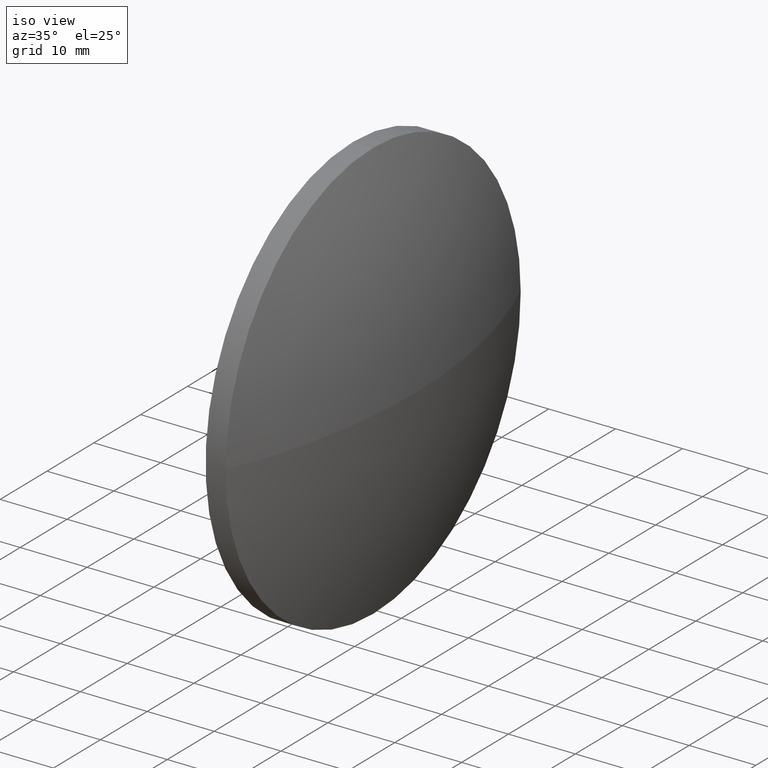
[diagram: clean part render]
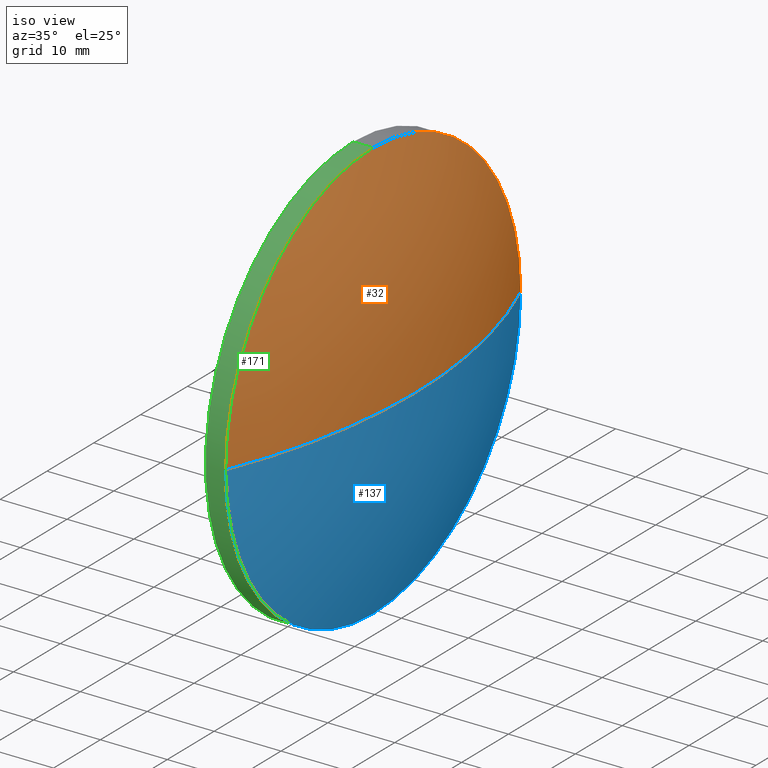
[diagram: same view with three faces highlighted in distinct colors, each labeled with its STEP entity id]
A machine part, iso view with three faces highlighted in distinct colors.
Their STEP definitions:

[orange] entity #32 — the highlighted spherical surface has radius 82.6272 mm.
#10 = DIRECTION ( 'NONE',  ( 0.0000000000000000000, 0.0000000000000000000, 1.000000000000000000 ) ) ;
#11 = ORIENTED_EDGE ( 'NONE', *, *, #49, .F. ) ;
#15 = AXIS2_PLACEMENT_3D ( 'NONE', #164, #69, #143 ) ;
#24 = DIRECTION ( 'NONE',  ( -1.000000000000000000, -0.0000000000000000000, -0.0000000000000000000 ) ) ;
#25 = AXIS2_PLACEMENT_3D ( 'NONE', #36, #24, #10 ) ;
#32 = ADVANCED_FACE ( 'NONE', ( #44 ), #130, .T. ) ;
#36 = CARTESIAN_POINT ( 'NONE',  ( 408.1110174173326200, 96.66232867724565400, 0.0000000000000000000 ) ) ;
#38 = CARTESIAN_POINT ( 'NONE',  ( 414.3510174173326800, 96.66232867724556900, 0.0000000000000000000 ) ) ;
#40 = ORIENTED_EDGE ( 'NONE', *, *, #112, .T. ) ;
#44 = FACE_OUTER_BOUND ( 'NONE', #157, .T. ) ;
#47 = VERTEX_POINT ( 'NONE', #63 ) ;
#49 = EDGE_CURVE ( 'NONE', #109, #47, #61, .T. ) ;
#52 = ORIENTED_EDGE ( 'NONE', *, *, #132, .F. ) ;
#53 = DIRECTION ( 'NONE',  ( 0.0000000000000000000, 1.224646799147353200E-016, -1.000000000000000000 ) ) ;
#54 = CARTESIAN_POINT ( 'NONE',  ( 331.7238058788712500, 96.66232867724556900, 0.0000000000000000000 ) ) ;
#55 = CARTESIAN_POINT ( 'NONE',  ( 408.1110174173326200, 96.66232867724565400, 0.0000000000000000000 ) ) ;
#61 = CIRCLE ( 'NONE', #155, 82.62721153846143800 ) ;
#63 = CARTESIAN_POINT ( 'NONE',  ( 408.1110174173326200, 65.16232867724556900, -3.857637417314161900E-015 ) ) ;
#65 = CARTESIAN_POINT ( 'NONE',  ( 331.7238058788712500, 96.66232867724556900, 0.0000000000000000000 ) ) ;
#69 = DIRECTION ( 'NONE',  ( -0.0000000000000000000, 0.0000000000000000000, 1.000000000000000000 ) ) ;
#87 = VERTEX_POINT ( 'NONE', #141 ) ;
#91 = CIRCLE ( 'NONE', #25, 31.50000000000001400 ) ;
#96 = AXIS2_PLACEMENT_3D ( 'NONE', #55, #113, #179 ) ;
#108 = DIRECTION ( 'NONE',  ( -0.0000000000000000000, 0.0000000000000000000, -1.000000000000000000 ) ) ;
#109 = VERTEX_POINT ( 'NONE', #38 ) ;
#112 = EDGE_CURVE ( 'NONE', #109, #87, #148, .T. ) ;
#113 = DIRECTION ( 'NONE',  ( -1.000000000000000000, -0.0000000000000000000, -0.0000000000000000000 ) ) ;
#114 = DIRECTION ( 'NONE',  ( 0.0000000000000000000, 1.000000000000000000, 1.224646799147353200E-016 ) ) ;
#115 = ORIENTED_EDGE ( 'NONE', *, *, #145, .F. ) ;
#124 = VERTEX_POINT ( 'NONE', #128 ) ;
#128 = CARTESIAN_POINT ( 'NONE',  ( 408.1110174173326200, 96.66232867724565400, 31.50000000000001400 ) ) ;
#130 = SPHERICAL_SURFACE ( 'NONE', #149, 82.62721153846143800 ) ;
#132 = EDGE_CURVE ( 'NONE', #47, #124, #154, .T. ) ;
#141 = CARTESIAN_POINT ( 'NONE',  ( 408.1110174173326200, 128.1623286772456500, 0.0000000000000000000 ) ) ;
#143 = DIRECTION ( 'NONE',  ( 1.000000000000000000, 0.0000000000000000000, 0.0000000000000000000 ) ) ;
#145 = EDGE_CURVE ( 'NONE', #124, #87, #91, .T. ) ;
#148 = CIRCLE ( 'NONE', #15, 82.62721153846142400 ) ;
#149 = AXIS2_PLACEMENT_3D ( 'NONE', #65, #108, #160 ) ;
#154 = CIRCLE ( 'NONE', #96, 31.50000000000001400 ) ;
#155 = AXIS2_PLACEMENT_3D ( 'NONE', #54, #53, #114 ) ;
#157 = EDGE_LOOP ( 'NONE', ( #11, #40, #115, #52 ) ) ;
#160 = DIRECTION ( 'NONE',  ( 0.0000000000000000000, 1.000000000000000000, 0.0000000000000000000 ) ) ;
#164 = CARTESIAN_POINT ( 'NONE',  ( 331.7238058788712500, 96.66232867724556900, 0.0000000000000000000 ) ) ;
#179 = DIRECTION ( 'NONE',  ( 0.0000000000000000000, 0.0000000000000000000, 1.000000000000000000 ) ) ;

[blue] entity #137 — the highlighted spherical surface has radius 82.6272 mm.
#15 = AXIS2_PLACEMENT_3D ( 'NONE', #164, #69, #143 ) ;
#21 = DIRECTION ( 'NONE',  ( 0.0000000000000000000, 0.0000000000000000000, 1.000000000000000000 ) ) ;
#31 = AXIS2_PLACEMENT_3D ( 'NONE', #140, #98, #83 ) ;
#38 = CARTESIAN_POINT ( 'NONE',  ( 414.3510174173326800, 96.66232867724556900, 0.0000000000000000000 ) ) ;
#43 = DIRECTION ( 'NONE',  ( 0.0000000000000000000, 0.0000000000000000000, 1.000000000000000000 ) ) ;
#45 = EDGE_CURVE ( 'NONE', #87, #60, #95, .T. ) ;
#47 = VERTEX_POINT ( 'NONE', #63 ) ;
#49 = EDGE_CURVE ( 'NONE', #109, #47, #61, .T. ) ;
#53 = DIRECTION ( 'NONE',  ( 0.0000000000000000000, 1.224646799147353200E-016, -1.000000000000000000 ) ) ;
#54 = CARTESIAN_POINT ( 'NONE',  ( 331.7238058788712500, 96.66232867724556900, 0.0000000000000000000 ) ) ;
#60 = VERTEX_POINT ( 'NONE', #77 ) ;
#61 = CIRCLE ( 'NONE', #155, 82.62721153846143800 ) ;
#63 = CARTESIAN_POINT ( 'NONE',  ( 408.1110174173326200, 65.16232867724556900, -3.857637417314161900E-015 ) ) ;
#69 = DIRECTION ( 'NONE',  ( -0.0000000000000000000, 0.0000000000000000000, 1.000000000000000000 ) ) ;
#76 = SPHERICAL_SURFACE ( 'NONE', #31, 82.62721153846143800 ) ;
#77 = CARTESIAN_POINT ( 'NONE',  ( 408.1110174173326200, 96.66232867724565400, -31.50000000000001400 ) ) ;
#83 = DIRECTION ( 'NONE',  ( 0.0000000000000000000, 1.000000000000000000, 0.0000000000000000000 ) ) ;
#87 = VERTEX_POINT ( 'NONE', #141 ) ;
#92 = ORIENTED_EDGE ( 'NONE', *, *, #173, .F. ) ;
#95 = CIRCLE ( 'NONE', #138, 31.50000000000001400 ) ;
#98 = DIRECTION ( 'NONE',  ( -0.0000000000000000000, 0.0000000000000000000, -1.000000000000000000 ) ) ;
#102 = ORIENTED_EDGE ( 'NONE', *, *, #49, .T. ) ;
#103 = CIRCLE ( 'NONE', #118, 31.50000000000001400 ) ;
#109 = VERTEX_POINT ( 'NONE', #38 ) ;
#111 = DIRECTION ( 'NONE',  ( -1.000000000000000000, -0.0000000000000000000, -0.0000000000000000000 ) ) ;
#112 = EDGE_CURVE ( 'NONE', #109, #87, #148, .T. ) ;
#114 = DIRECTION ( 'NONE',  ( 0.0000000000000000000, 1.000000000000000000, 1.224646799147353200E-016 ) ) ;
#118 = AXIS2_PLACEMENT_3D ( 'NONE', #182, #129, #43 ) ;
#129 = DIRECTION ( 'NONE',  ( -1.000000000000000000, -0.0000000000000000000, -0.0000000000000000000 ) ) ;
#137 = ADVANCED_FACE ( 'NONE', ( #180 ), #76, .T. ) ;
#138 = AXIS2_PLACEMENT_3D ( 'NONE', #174, #111, #21 ) ;
#139 = EDGE_LOOP ( 'NONE', ( #168, #102, #92, #178 ) ) ;
#140 = CARTESIAN_POINT ( 'NONE',  ( 331.7238058788712500, 96.66232867724556900, 0.0000000000000000000 ) ) ;
#141 = CARTESIAN_POINT ( 'NONE',  ( 408.1110174173326200, 128.1623286772456500, 0.0000000000000000000 ) ) ;
#143 = DIRECTION ( 'NONE',  ( 1.000000000000000000, 0.0000000000000000000, 0.0000000000000000000 ) ) ;
#148 = CIRCLE ( 'NONE', #15, 82.62721153846142400 ) ;
#155 = AXIS2_PLACEMENT_3D ( 'NONE', #54, #53, #114 ) ;
#164 = CARTESIAN_POINT ( 'NONE',  ( 331.7238058788712500, 96.66232867724556900, 0.0000000000000000000 ) ) ;
#168 = ORIENTED_EDGE ( 'NONE', *, *, #112, .F. ) ;
#173 = EDGE_CURVE ( 'NONE', #60, #47, #103, .T. ) ;
#174 = CARTESIAN_POINT ( 'NONE',  ( 408.1110174173326200, 96.66232867724565400, 0.0000000000000000000 ) ) ;
#178 = ORIENTED_EDGE ( 'NONE', *, *, #45, .F. ) ;
#180 = FACE_OUTER_BOUND ( 'NONE', #139, .T. ) ;
#182 = CARTESIAN_POINT ( 'NONE',  ( 408.1110174173326200, 96.66232867724565400, 0.0000000000000000000 ) ) ;

[green] entity #171 — the highlighted cylindrical surface (partial cylindrical patch) has radius 31.5 mm, axis along (-1, -0, -0).
#2 = CARTESIAN_POINT ( 'NONE',  ( 386.0720623555101800, 96.66232867724565400, -31.50000000000001400 ) ) ;
#7 = DIRECTION ( 'NONE',  ( -1.000000000000000000, -0.0000000000000000000, -0.0000000000000000000 ) ) ;
#12 = ORIENTED_EDGE ( 'NONE', *, *, #132, .T. ) ;
#17 = CARTESIAN_POINT ( 'NONE',  ( 405.1110174173326200, 96.66232867724565400, 31.50000000000001400 ) ) ;
#22 = CARTESIAN_POINT ( 'NONE',  ( 405.1110174173326200, 96.66232867724565400, 0.0000000000000000000 ) ) ;
#29 = EDGE_CURVE ( 'NONE', #60, #70, #86, .T. ) ;
#34 = VECTOR ( 'NONE', #165, 1000.000000000000000 ) ;
#43 = DIRECTION ( 'NONE',  ( 0.0000000000000000000, 0.0000000000000000000, 1.000000000000000000 ) ) ;
#47 = VERTEX_POINT ( 'NONE', #63 ) ;
#51 = VERTEX_POINT ( 'NONE', #17 ) ;
#55 = CARTESIAN_POINT ( 'NONE',  ( 408.1110174173326200, 96.66232867724565400, 0.0000000000000000000 ) ) ;
#59 = CIRCLE ( 'NONE', #100, 31.50000000000001400 ) ;
#60 = VERTEX_POINT ( 'NONE', #77 ) ;
#63 = CARTESIAN_POINT ( 'NONE',  ( 408.1110174173326200, 65.16232867724556900, -3.857637417314161900E-015 ) ) ;
#66 = CARTESIAN_POINT ( 'NONE',  ( 386.0720623555101800, 96.66232867724565400, 0.0000000000000000000 ) ) ;
#70 = VERTEX_POINT ( 'NONE', #151 ) ;
#74 = EDGE_LOOP ( 'NONE', ( #169, #101, #12, #166, #80 ) ) ;
#77 = CARTESIAN_POINT ( 'NONE',  ( 408.1110174173326200, 96.66232867724565400, -31.50000000000001400 ) ) ;
#79 = LINE ( 'NONE', #177, #34 ) ;
#80 = ORIENTED_EDGE ( 'NONE', *, *, #90, .F. ) ;
#81 = DIRECTION ( 'NONE',  ( 0.0000000000000000000, 0.0000000000000000000, 1.000000000000000000 ) ) ;
#82 = DIRECTION ( 'NONE',  ( 0.0000000000000000000, 0.0000000000000000000, 1.000000000000000000 ) ) ;
#86 = LINE ( 'NONE', #2, #184 ) ;
#90 = EDGE_CURVE ( 'NONE', #70, #51, #59, .T. ) ;
#96 = AXIS2_PLACEMENT_3D ( 'NONE', #55, #113, #179 ) ;
#100 = AXIS2_PLACEMENT_3D ( 'NONE', #22, #176, #82 ) ;
#101 = ORIENTED_EDGE ( 'NONE', *, *, #173, .T. ) ;
#103 = CIRCLE ( 'NONE', #118, 31.50000000000001400 ) ;
#113 = DIRECTION ( 'NONE',  ( -1.000000000000000000, -0.0000000000000000000, -0.0000000000000000000 ) ) ;
#117 = DIRECTION ( 'NONE',  ( -1.000000000000000000, -0.0000000000000000000, -0.0000000000000000000 ) ) ;
#118 = AXIS2_PLACEMENT_3D ( 'NONE', #182, #129, #43 ) ;
#121 = CYLINDRICAL_SURFACE ( 'NONE', #162, 31.50000000000001400 ) ;
#122 = FACE_OUTER_BOUND ( 'NONE', #74, .T. ) ;
#123 = EDGE_CURVE ( 'NONE', #124, #51, #79, .T. ) ;
#124 = VERTEX_POINT ( 'NONE', #128 ) ;
#128 = CARTESIAN_POINT ( 'NONE',  ( 408.1110174173326200, 96.66232867724565400, 31.50000000000001400 ) ) ;
#129 = DIRECTION ( 'NONE',  ( -1.000000000000000000, -0.0000000000000000000, -0.0000000000000000000 ) ) ;
#132 = EDGE_CURVE ( 'NONE', #47, #124, #154, .T. ) ;
#151 = CARTESIAN_POINT ( 'NONE',  ( 405.1110174173326200, 96.66232867724565400, -31.50000000000001400 ) ) ;
#154 = CIRCLE ( 'NONE', #96, 31.50000000000001400 ) ;
#162 = AXIS2_PLACEMENT_3D ( 'NONE', #66, #117, #81 ) ;
#165 = DIRECTION ( 'NONE',  ( -1.000000000000000000, -0.0000000000000000000, -0.0000000000000000000 ) ) ;
#166 = ORIENTED_EDGE ( 'NONE', *, *, #123, .T. ) ;
#169 = ORIENTED_EDGE ( 'NONE', *, *, #29, .F. ) ;
#171 = ADVANCED_FACE ( 'NONE', ( #122 ), #121, .T. ) ;
#173 = EDGE_CURVE ( 'NONE', #60, #47, #103, .T. ) ;
#176 = DIRECTION ( 'NONE',  ( -1.000000000000000000, -0.0000000000000000000, -0.0000000000000000000 ) ) ;
#177 = CARTESIAN_POINT ( 'NONE',  ( 386.0720623555101800, 96.66232867724565400, 31.50000000000001400 ) ) ;
#179 = DIRECTION ( 'NONE',  ( 0.0000000000000000000, 0.0000000000000000000, 1.000000000000000000 ) ) ;
#182 = CARTESIAN_POINT ( 'NONE',  ( 408.1110174173326200, 96.66232867724565400, 0.0000000000000000000 ) ) ;
#184 = VECTOR ( 'NONE', #7, 1000.000000000000000 ) ;